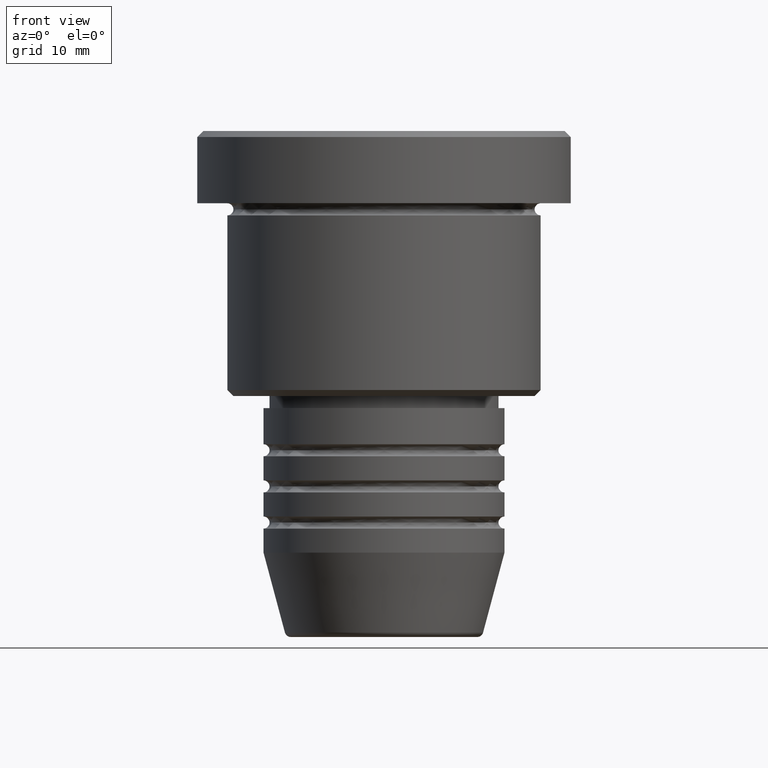
[diagram: clean part render]
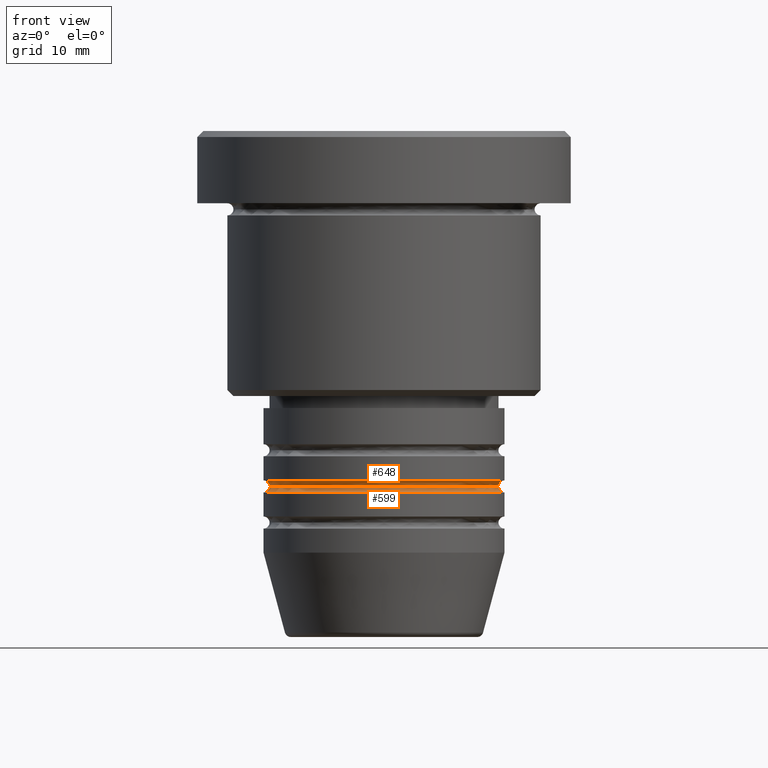
[diagram: same view with one multi-face feature highlighted, each face labeled with its STEP entity id]
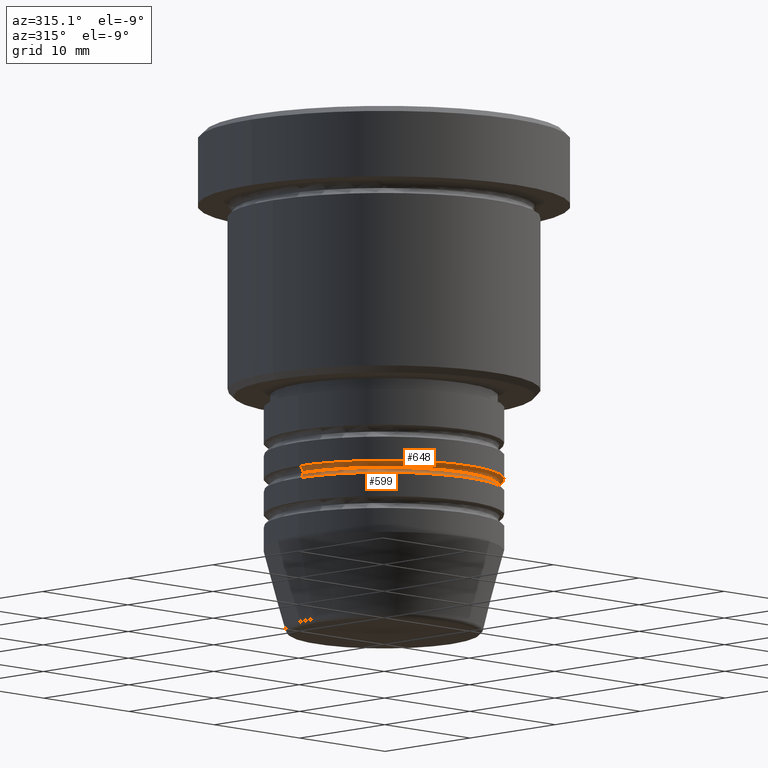
[diagram: same view with one multi-face feature highlighted, each face labeled with its STEP entity id]
A machine part, front view. The highlighted faces form ONE feature: a constant-radius fillet chain: 2 tangent blend faces with common blend radius 0.5 mm. The faces share edges in the B-rep.
A second angle (auxiliary view) of the same feature is appended — it is thin or edge-on in the first view.
Their STEP definitions:
[1] entity #599 (Torus):
#33 = DIRECTION ( 'NONE',  ( -0.000000000000000000, -0.000000000000000000, 1.000000000000000000 ) ) ;
#39 = EDGE_CURVE ( 'NONE', #95, #1043, #1150, .T. ) ;
#48 = DIRECTION ( 'NONE',  ( 1.000000000000000000, 0.000000000000000000, 0.000000000000000000 ) ) ;
#65 = AXIS2_PLACEMENT_3D ( 'NONE', #495, #488, #1112 ) ;
#87 = CIRCLE ( 'NONE', #143, 0.5000000000000004441 ) ;
#95 = VERTEX_POINT ( 'NONE', #690 ) ;
#124 = EDGE_CURVE ( 'NONE', #454, #95, #203, .T. ) ;
#143 = AXIS2_PLACEMENT_3D ( 'NONE', #190, #1010, #367 ) ;
#190 = CARTESIAN_POINT ( 'NONE',  ( -10.00000000000000178, 1.224646799147353454E-15, -29.49999999999997868 ) ) ;
#193 = DIRECTION ( 'NONE',  ( 0.000000000000000000, -1.000000000000000000, 0.000000000000000000 ) ) ;
#203 = CIRCLE ( 'NONE', #65, 9.500000000000001776 ) ;
#245 = ORIENTED_EDGE ( 'NONE', *, *, #448, .T. ) ;
#247 = AXIS2_PLACEMENT_3D ( 'NONE', #402, #33, #575 ) ;
#274 = ORIENTED_EDGE ( 'NONE', *, *, #684, .T. ) ;
#278 = ORIENTED_EDGE ( 'NONE', *, *, #39, .F. ) ;
#367 = DIRECTION ( 'NONE',  ( -1.000000000000000000, 1.224646799147353454E-16, 0.000000000000000000 ) ) ;
#370 = VERTEX_POINT ( 'NONE', #457 ) ;
#402 = CARTESIAN_POINT ( 'NONE',  ( 0.000000000000000000, 0.000000000000000000, -29.99999999999998224 ) ) ;
#448 = EDGE_CURVE ( 'NONE', #370, #1043, #526, .T. ) ;
#454 = VERTEX_POINT ( 'NONE', #764 ) ;
#457 = CARTESIAN_POINT ( 'NONE',  ( -10.00000000000000000, 1.224646799147353256E-15, -29.99999999999998224 ) ) ;
#488 = DIRECTION ( 'NONE',  ( -0.000000000000000000, -0.000000000000000000, 1.000000000000000000 ) ) ;
#495 = CARTESIAN_POINT ( 'NONE',  ( 0.000000000000000000, 0.000000000000000000, -29.49999999999997868 ) ) ;
#524 = ORIENTED_EDGE ( 'NONE', *, *, #124, .F. ) ;
#526 = CIRCLE ( 'NONE', #247, 10.00000000000000000 ) ;
#575 = DIRECTION ( 'NONE',  ( 1.000000000000000000, 0.000000000000000000, 0.000000000000000000 ) ) ;
#599 = ADVANCED_FACE ( 'NONE', ( #869 ), #757, .F. ) ;
#684 = EDGE_CURVE ( 'NONE', #454, #370, #87, .T. ) ;
#690 = CARTESIAN_POINT ( 'NONE',  ( 9.500000000000001776, 0.000000000000000000, -29.49999999999997868 ) ) ;
#757 = TOROIDAL_SURFACE ( 'NONE', #1005, 10.00000000000000178, 0.5000000000000000000 ) ;
#764 = CARTESIAN_POINT ( 'NONE',  ( -9.500000000000001776, 1.194030629168669469E-15, -29.49999999999997868 ) ) ;
#869 = FACE_OUTER_BOUND ( 'NONE', #919, .T. ) ;
#894 = CARTESIAN_POINT ( 'NONE',  ( 0.000000000000000000, 0.000000000000000000, -29.49999999999997868 ) ) ;
#919 = EDGE_LOOP ( 'NONE', ( #524, #274, #245, #278 ) ) ;
#984 = AXIS2_PLACEMENT_3D ( 'NONE', #1004, #193, #1108 ) ;
#1004 = CARTESIAN_POINT ( 'NONE',  ( 10.00000000000000178, 0.000000000000000000, -29.49999999999997868 ) ) ;
#1005 = AXIS2_PLACEMENT_3D ( 'NONE', #894, #1146, #48 ) ;
#1010 = DIRECTION ( 'NONE',  ( 1.224646799147353207E-16, 1.000000000000000000, 0.000000000000000000 ) ) ;
#1043 = VERTEX_POINT ( 'NONE', #1128 ) ;
#1108 = DIRECTION ( 'NONE',  ( 0.000000000000000000, 0.000000000000000000, -1.000000000000000000 ) ) ;
#1112 = DIRECTION ( 'NONE',  ( 1.000000000000000000, 0.000000000000000000, 0.000000000000000000 ) ) ;
#1128 = CARTESIAN_POINT ( 'NONE',  ( 10.00000000000000000, 0.000000000000000000, -29.99999999999998224 ) ) ;
#1146 = DIRECTION ( 'NONE',  ( -0.000000000000000000, -0.000000000000000000, 1.000000000000000000 ) ) ;
#1150 = CIRCLE ( 'NONE', #984, 0.5000000000000004441 ) ;
[2] entity #648 (Torus):
#3 = CARTESIAN_POINT ( 'NONE',  ( 0.000000000000000000, 0.000000000000000000, -28.99999999999997868 ) ) ;
#11 = TOROIDAL_SURFACE ( 'NONE', #831, 10.00000000000000178, 0.5000000000000000000 ) ;
#30 = AXIS2_PLACEMENT_3D ( 'NONE', #224, #1031, #1035 ) ;
#44 = CARTESIAN_POINT ( 'NONE',  ( -10.00000000000000000, 1.224646799147353256E-15, -28.99999999999997868 ) ) ;
#65 = AXIS2_PLACEMENT_3D ( 'NONE', #495, #488, #1112 ) ;
#95 = VERTEX_POINT ( 'NONE', #690 ) ;
#124 = EDGE_CURVE ( 'NONE', #454, #95, #203, .T. ) ;
#161 = DIRECTION ( 'NONE',  ( 0.000000000000000000, 0.000000000000000000, -1.000000000000000000 ) ) ;
#169 = ORIENTED_EDGE ( 'NONE', *, *, #892, .F. ) ;
#194 = DIRECTION ( 'NONE',  ( -0.000000000000000000, -0.000000000000000000, 1.000000000000000000 ) ) ;
#203 = CIRCLE ( 'NONE', #65, 9.500000000000001776 ) ;
#224 = CARTESIAN_POINT ( 'NONE',  ( 10.00000000000000178, 1.224646799147353454E-15, -29.49999999999997868 ) ) ;
#235 = VERTEX_POINT ( 'NONE', #1034 ) ;
#289 = ORIENTED_EDGE ( 'NONE', *, *, #668, .F. ) ;
#328 = ORIENTED_EDGE ( 'NONE', *, *, #746, .T. ) ;
#335 = EDGE_LOOP ( 'NONE', ( #472, #328, #289, #169 ) ) ;
#454 = VERTEX_POINT ( 'NONE', #764 ) ;
#472 = ORIENTED_EDGE ( 'NONE', *, *, #124, .T. ) ;
#473 = AXIS2_PLACEMENT_3D ( 'NONE', #694, #1162, #1148 ) ;
#475 = DIRECTION ( 'NONE',  ( -1.000000000000000000, 0.000000000000000000, 0.000000000000000000 ) ) ;
#488 = DIRECTION ( 'NONE',  ( -0.000000000000000000, -0.000000000000000000, 1.000000000000000000 ) ) ;
#495 = CARTESIAN_POINT ( 'NONE',  ( 0.000000000000000000, 0.000000000000000000, -29.49999999999997868 ) ) ;
#542 = DIRECTION ( 'NONE',  ( 1.000000000000000000, 0.000000000000000000, 0.000000000000000000 ) ) ;
#648 = ADVANCED_FACE ( 'NONE', ( #1070 ), #11, .F. ) ;
#664 = AXIS2_PLACEMENT_3D ( 'NONE', #3, #194, #542 ) ;
#668 = EDGE_CURVE ( 'NONE', #708, #235, #1038, .T. ) ;
#690 = CARTESIAN_POINT ( 'NONE',  ( 9.500000000000001776, 0.000000000000000000, -29.49999999999997868 ) ) ;
#694 = CARTESIAN_POINT ( 'NONE',  ( -10.00000000000000178, 0.000000000000000000, -29.49999999999997868 ) ) ;
#708 = VERTEX_POINT ( 'NONE', #44 ) ;
#746 = EDGE_CURVE ( 'NONE', #95, #235, #814, .T. ) ;
#764 = CARTESIAN_POINT ( 'NONE',  ( -9.500000000000001776, 1.194030629168669469E-15, -29.49999999999997868 ) ) ;
#795 = CIRCLE ( 'NONE', #473, 0.5000000000000004441 ) ;
#814 = CIRCLE ( 'NONE', #30, 0.5000000000000004441 ) ;
#831 = AXIS2_PLACEMENT_3D ( 'NONE', #982, #161, #475 ) ;
#892 = EDGE_CURVE ( 'NONE', #454, #708, #795, .T. ) ;
#982 = CARTESIAN_POINT ( 'NONE',  ( 0.000000000000000000, 0.000000000000000000, -29.49999999999997868 ) ) ;
#1031 = DIRECTION ( 'NONE',  ( -1.224646799147353207E-16, 1.000000000000000000, 0.000000000000000000 ) ) ;
#1034 = CARTESIAN_POINT ( 'NONE',  ( 10.00000000000000000, 0.000000000000000000, -28.99999999999997868 ) ) ;
#1035 = DIRECTION ( 'NONE',  ( -1.000000000000000000, -1.224646799147353454E-16, 0.000000000000000000 ) ) ;
#1038 = CIRCLE ( 'NONE', #664, 10.00000000000000000 ) ;
#1070 = FACE_OUTER_BOUND ( 'NONE', #335, .T. ) ;
#1112 = DIRECTION ( 'NONE',  ( 1.000000000000000000, 0.000000000000000000, 0.000000000000000000 ) ) ;
#1148 = DIRECTION ( 'NONE',  ( 0.000000000000000000, 0.000000000000000000, -1.000000000000000000 ) ) ;
#1162 = DIRECTION ( 'NONE',  ( -0.000000000000000000, -1.000000000000000000, -0.000000000000000000 ) ) ;